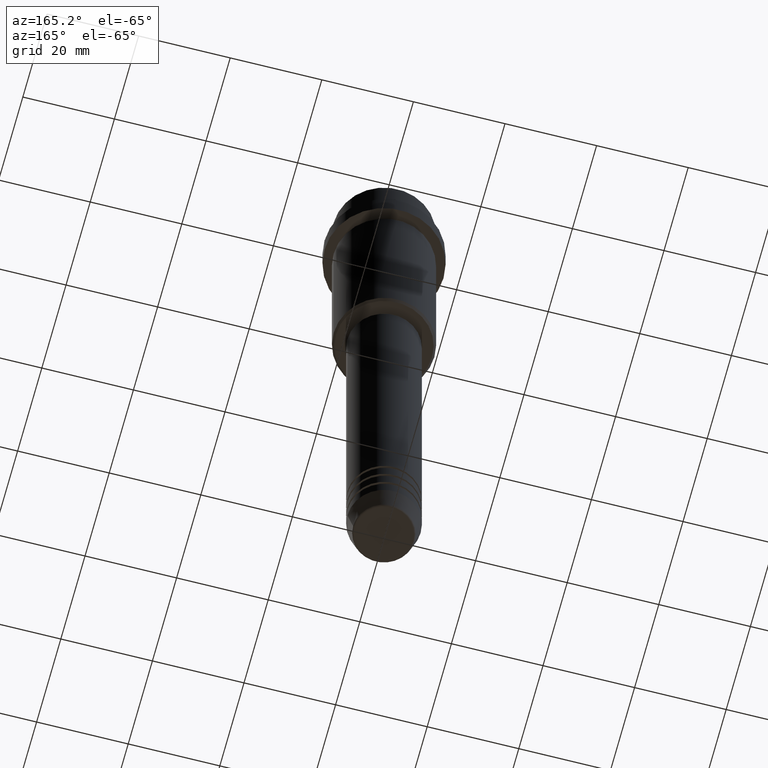
[diagram: clean part render]
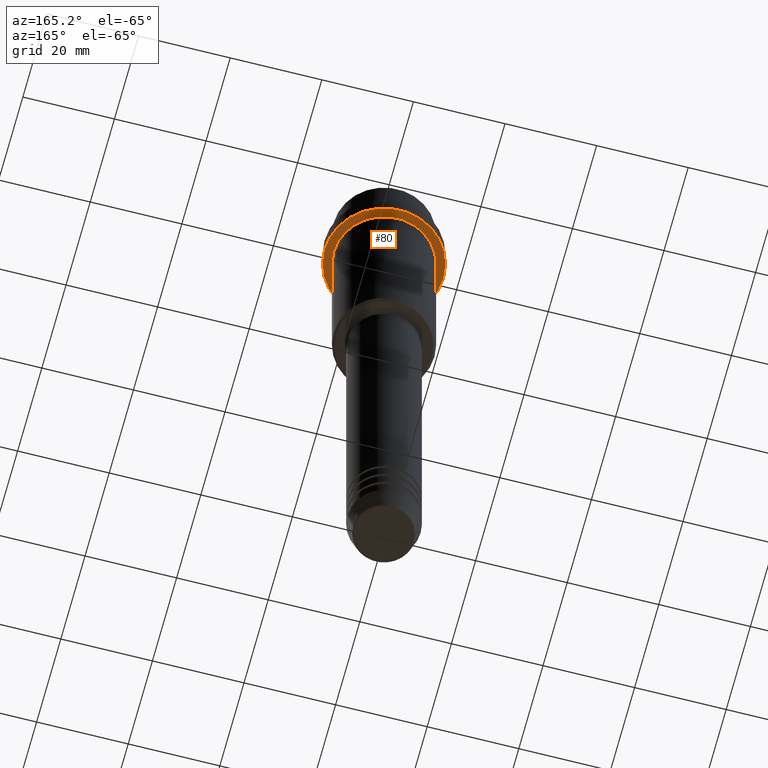
[diagram: same view with one face highlighted and labeled with its STEP entity id]
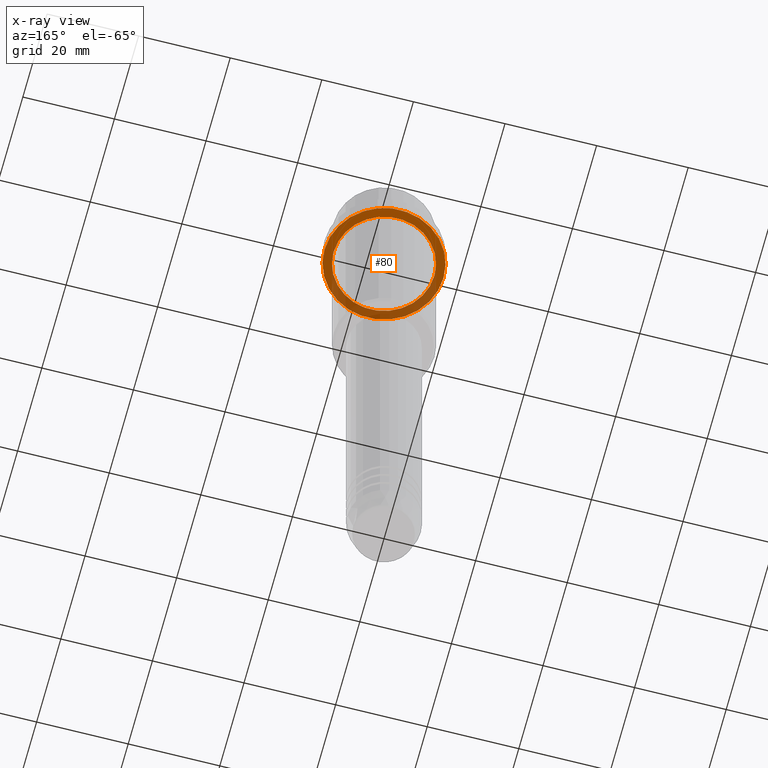
[diagram: x-ray of the same camera — body ghosted, the highlighted face saturated]
A machine part, auxiliary view. The second image highlights one B-rep face of the part: STEP entity #80.
The next image is the same camera in x-ray: the body ghosted, the highlighted face saturated — about 36% of this face is hidden behind the body in this view.
In plain terms, the highlighted planar face has unit normal (0, 0, -1).
Its self-contained STEP definition (entity closure, byte-faithful):
#16 = FACE_BOUND ( 'NONE', #1157, .T. ) ;
#43 = DIRECTION ( 'NONE',  ( -0.000000000000000000, -0.000000000000000000, 1.000000000000000000 ) ) ;
#45 = VERTEX_POINT ( 'NONE', #468 ) ;
#80 = ADVANCED_FACE ( 'NONE', ( #16, #686 ), #466, .T. ) ;
#115 = EDGE_LOOP ( 'NONE', ( #1295, #400 ) ) ;
#122 = DIRECTION ( 'NONE',  ( -0.000000000000000000, -0.000000000000000000, 1.000000000000000000 ) ) ;
#128 = CARTESIAN_POINT ( 'NONE',  ( 0.000000000000000000, 0.000000000000000000, -15.00000000000000355 ) ) ;
#201 = ORIENTED_EDGE ( 'NONE', *, *, #482, .T. ) ;
#252 = DIRECTION ( 'NONE',  ( -1.000000000000000000, 0.000000000000000000, 0.000000000000000000 ) ) ;
#263 = ORIENTED_EDGE ( 'NONE', *, *, #819, .T. ) ;
#264 = CIRCLE ( 'NONE', #880, 13.00000000000000000 ) ;
#295 = DIRECTION ( 'NONE',  ( 0.000000000000000000, 0.000000000000000000, -1.000000000000000000 ) ) ;
#332 = AXIS2_PLACEMENT_3D ( 'NONE', #920, #1347, #252 ) ;
#392 = VERTEX_POINT ( 'NONE', #659 ) ;
#400 = ORIENTED_EDGE ( 'NONE', *, *, #1406, .F. ) ;
#415 = AXIS2_PLACEMENT_3D ( 'NONE', #128, #122, #457 ) ;
#457 = DIRECTION ( 'NONE',  ( -1.000000000000000000, 0.000000000000000000, 0.000000000000000000 ) ) ;
#466 = PLANE ( 'NONE',  #693 ) ;
#468 = CARTESIAN_POINT ( 'NONE',  ( -13.00000000000000000, 1.592040838891559095E-15, -15.00000000000000178 ) ) ;
#482 = EDGE_CURVE ( 'NONE', #688, #712, #696, .T. ) ;
#605 = CARTESIAN_POINT ( 'NONE',  ( -10.99999999999996625, 0.000000000000000000, -15.00000000000000355 ) ) ;
#659 = CARTESIAN_POINT ( 'NONE',  ( 13.00000000000000000, 0.000000000000000000, -15.00000000000000178 ) ) ;
#686 = FACE_OUTER_BOUND ( 'NONE', #115, .T. ) ;
#688 = VERTEX_POINT ( 'NONE', #809 ) ;
#693 = AXIS2_PLACEMENT_3D ( 'NONE', #1109, #295, #1377 ) ;
#696 = CIRCLE ( 'NONE', #415, 10.99999999999996625 ) ;
#712 = VERTEX_POINT ( 'NONE', #605 ) ;
#754 = DIRECTION ( 'NONE',  ( 1.000000000000000000, 0.000000000000000000, 0.000000000000000000 ) ) ;
#798 = AXIS2_PLACEMENT_3D ( 'NONE', #1179, #1066, #754 ) ;
#809 = CARTESIAN_POINT ( 'NONE',  ( 10.99999999999996625, 1.347111479062084460E-15, -15.00000000000000355 ) ) ;
#819 = EDGE_CURVE ( 'NONE', #712, #688, #918, .T. ) ;
#880 = AXIS2_PLACEMENT_3D ( 'NONE', #992, #43, #1235 ) ;
#918 = CIRCLE ( 'NONE', #332, 10.99999999999996625 ) ;
#920 = CARTESIAN_POINT ( 'NONE',  ( 0.000000000000000000, 0.000000000000000000, -15.00000000000000355 ) ) ;
#945 = CIRCLE ( 'NONE', #798, 13.00000000000000000 ) ;
#992 = CARTESIAN_POINT ( 'NONE',  ( 0.000000000000000000, 0.000000000000000000, -15.00000000000000178 ) ) ;
#1066 = DIRECTION ( 'NONE',  ( -0.000000000000000000, -0.000000000000000000, 1.000000000000000000 ) ) ;
#1109 = CARTESIAN_POINT ( 'NONE',  ( 0.000000000000000000, 13.00000000000000000, -15.00000000000000355 ) ) ;
#1157 = EDGE_LOOP ( 'NONE', ( #263, #201 ) ) ;
#1179 = CARTESIAN_POINT ( 'NONE',  ( 0.000000000000000000, 0.000000000000000000, -15.00000000000000178 ) ) ;
#1235 = DIRECTION ( 'NONE',  ( 1.000000000000000000, 0.000000000000000000, 0.000000000000000000 ) ) ;
#1279 = EDGE_CURVE ( 'NONE', #392, #45, #264, .T. ) ;
#1295 = ORIENTED_EDGE ( 'NONE', *, *, #1279, .F. ) ;
#1347 = DIRECTION ( 'NONE',  ( -0.000000000000000000, -0.000000000000000000, 1.000000000000000000 ) ) ;
#1377 = DIRECTION ( 'NONE',  ( -1.000000000000000000, 0.000000000000000000, -0.000000000000000000 ) ) ;
#1406 = EDGE_CURVE ( 'NONE', #45, #392, #945, .T. ) ;